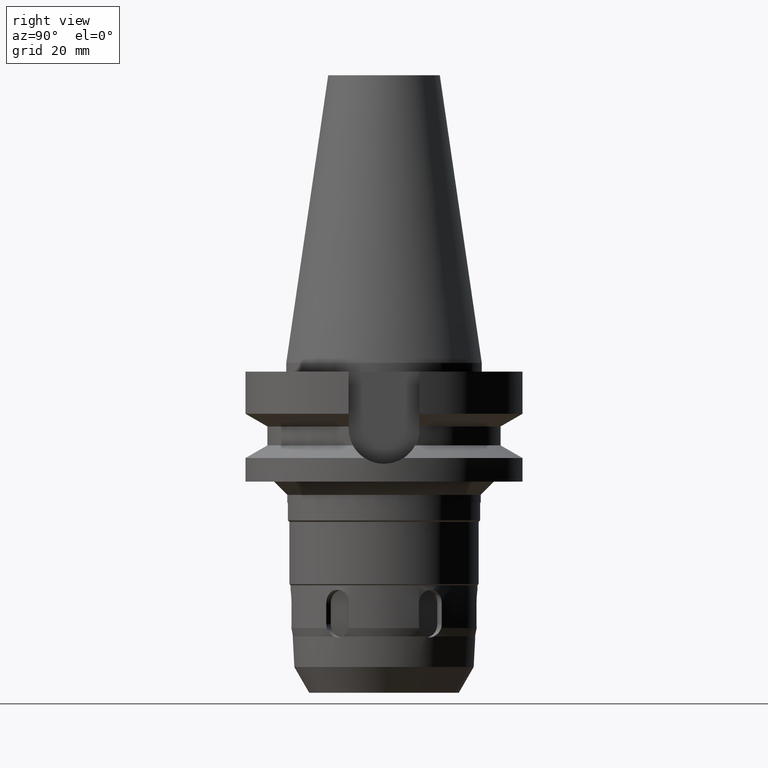
[diagram: clean part render]
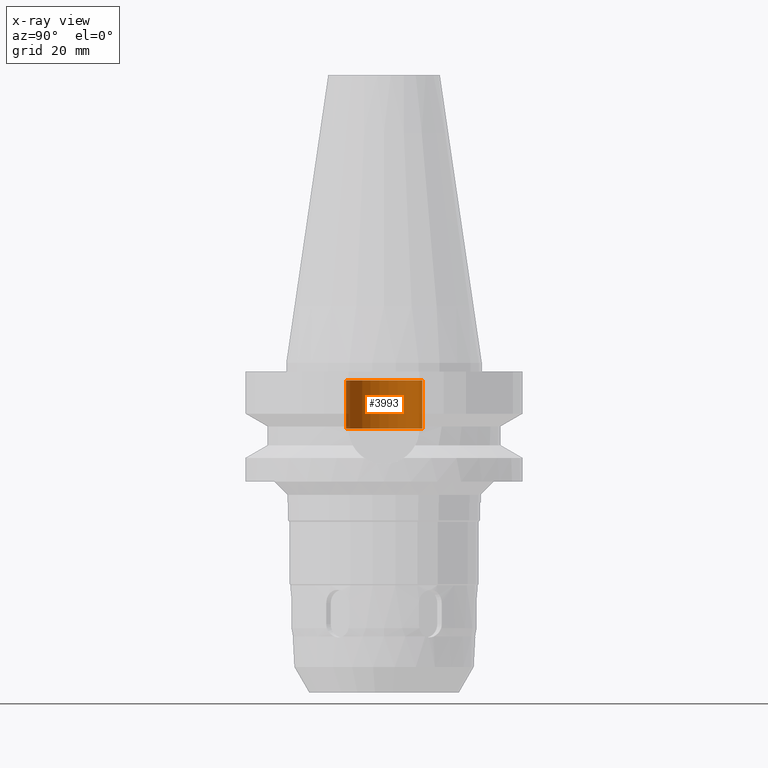
[diagram: x-ray — body ghosted, one internal face saturated and labeled with its STEP entity id]
A machine part, right view, then the same camera in x-ray: the body is ghosted and one INTERNAL B-rep face — a face not visible from any outside direction — is saturated and labeled: STEP entity #3993.
In plain terms, the highlighted cylindrical surface (partial cylindrical patch) has radius 8.7 mm, axis along (0, 0, -1).
Its self-contained STEP definition (entity closure, byte-faithful):
#2006=CARTESIAN_POINT('',(0.E0,2.111536011090E-14,-1.5E1));
#2007=DIRECTION('',(0.E0,0.E0,-1.E0));
#2008=DIRECTION('',(0.E0,-1.E0,0.E0));
#2009=AXIS2_PLACEMENT_3D('',#2006,#2007,#2008);
#2038=DIRECTION('',(0.E0,0.E0,1.E0));
#2039=VECTOR('',#2038,1.1E1);
#2040=CARTESIAN_POINT('',(0.E0,-8.7E0,-1.5E1));
#2041=LINE('',#2040,#2039);
#2045=DIRECTION('',(0.E0,0.E0,1.E0));
#2046=VECTOR('',#2045,1.1E1);
#2047=CARTESIAN_POINT('',(0.E0,8.7E0,-1.5E1));
#2048=LINE('',#2047,#2046);
#2060=CARTESIAN_POINT('',(0.E0,2.111536011090E-14,-4.E0));
#2061=DIRECTION('',(0.E0,0.E0,1.E0));
#2062=DIRECTION('',(0.E0,1.E0,0.E0));
#2063=AXIS2_PLACEMENT_3D('',#2060,#2061,#2062);
#2324=CARTESIAN_POINT('',(0.E0,-8.7E0,-4.E0));
#2325=CARTESIAN_POINT('',(0.E0,8.7E0,-4.E0));
#2326=VERTEX_POINT('',#2324);
#2327=VERTEX_POINT('',#2325);
#2328=CARTESIAN_POINT('',(0.E0,8.7E0,-1.5E1));
#2329=VERTEX_POINT('',#2328);
#2330=CARTESIAN_POINT('',(0.E0,-8.7E0,-1.5E1));
#2331=VERTEX_POINT('',#2330);
#3979=CARTESIAN_POINT('',(0.E0,2.111536011090E-14,7.242E1));
#3980=DIRECTION('',(0.E0,0.E0,-1.E0));
#3981=DIRECTION('',(0.E0,-1.E0,0.E0));
#3982=AXIS2_PLACEMENT_3D('',#3979,#3980,#3981);
#3983=CYLINDRICAL_SURFACE('',#3982,8.7E0);
#3985=ORIENTED_EDGE('',*,*,#3984,.F.);
#3986=ORIENTED_EDGE('',*,*,#3968,.F.);
#3988=ORIENTED_EDGE('',*,*,#3987,.T.);
#3990=ORIENTED_EDGE('',*,*,#3989,.F.);
#3991=EDGE_LOOP('',(#3985,#3986,#3988,#3990));
#3992=FACE_OUTER_BOUND('',#3991,.F.);
#2010=CIRCLE('',#2009,8.7E0);
#2064=CIRCLE('',#2063,8.7E0);
#3968=EDGE_CURVE('',#2331,#2329,#2010,.T.);
#3984=EDGE_CURVE('',#2329,#2327,#2048,.T.);
#3987=EDGE_CURVE('',#2331,#2326,#2041,.T.);
#3989=EDGE_CURVE('',#2327,#2326,#2064,.T.);
#3993=ADVANCED_FACE('',(#3992),#3983,.F.);